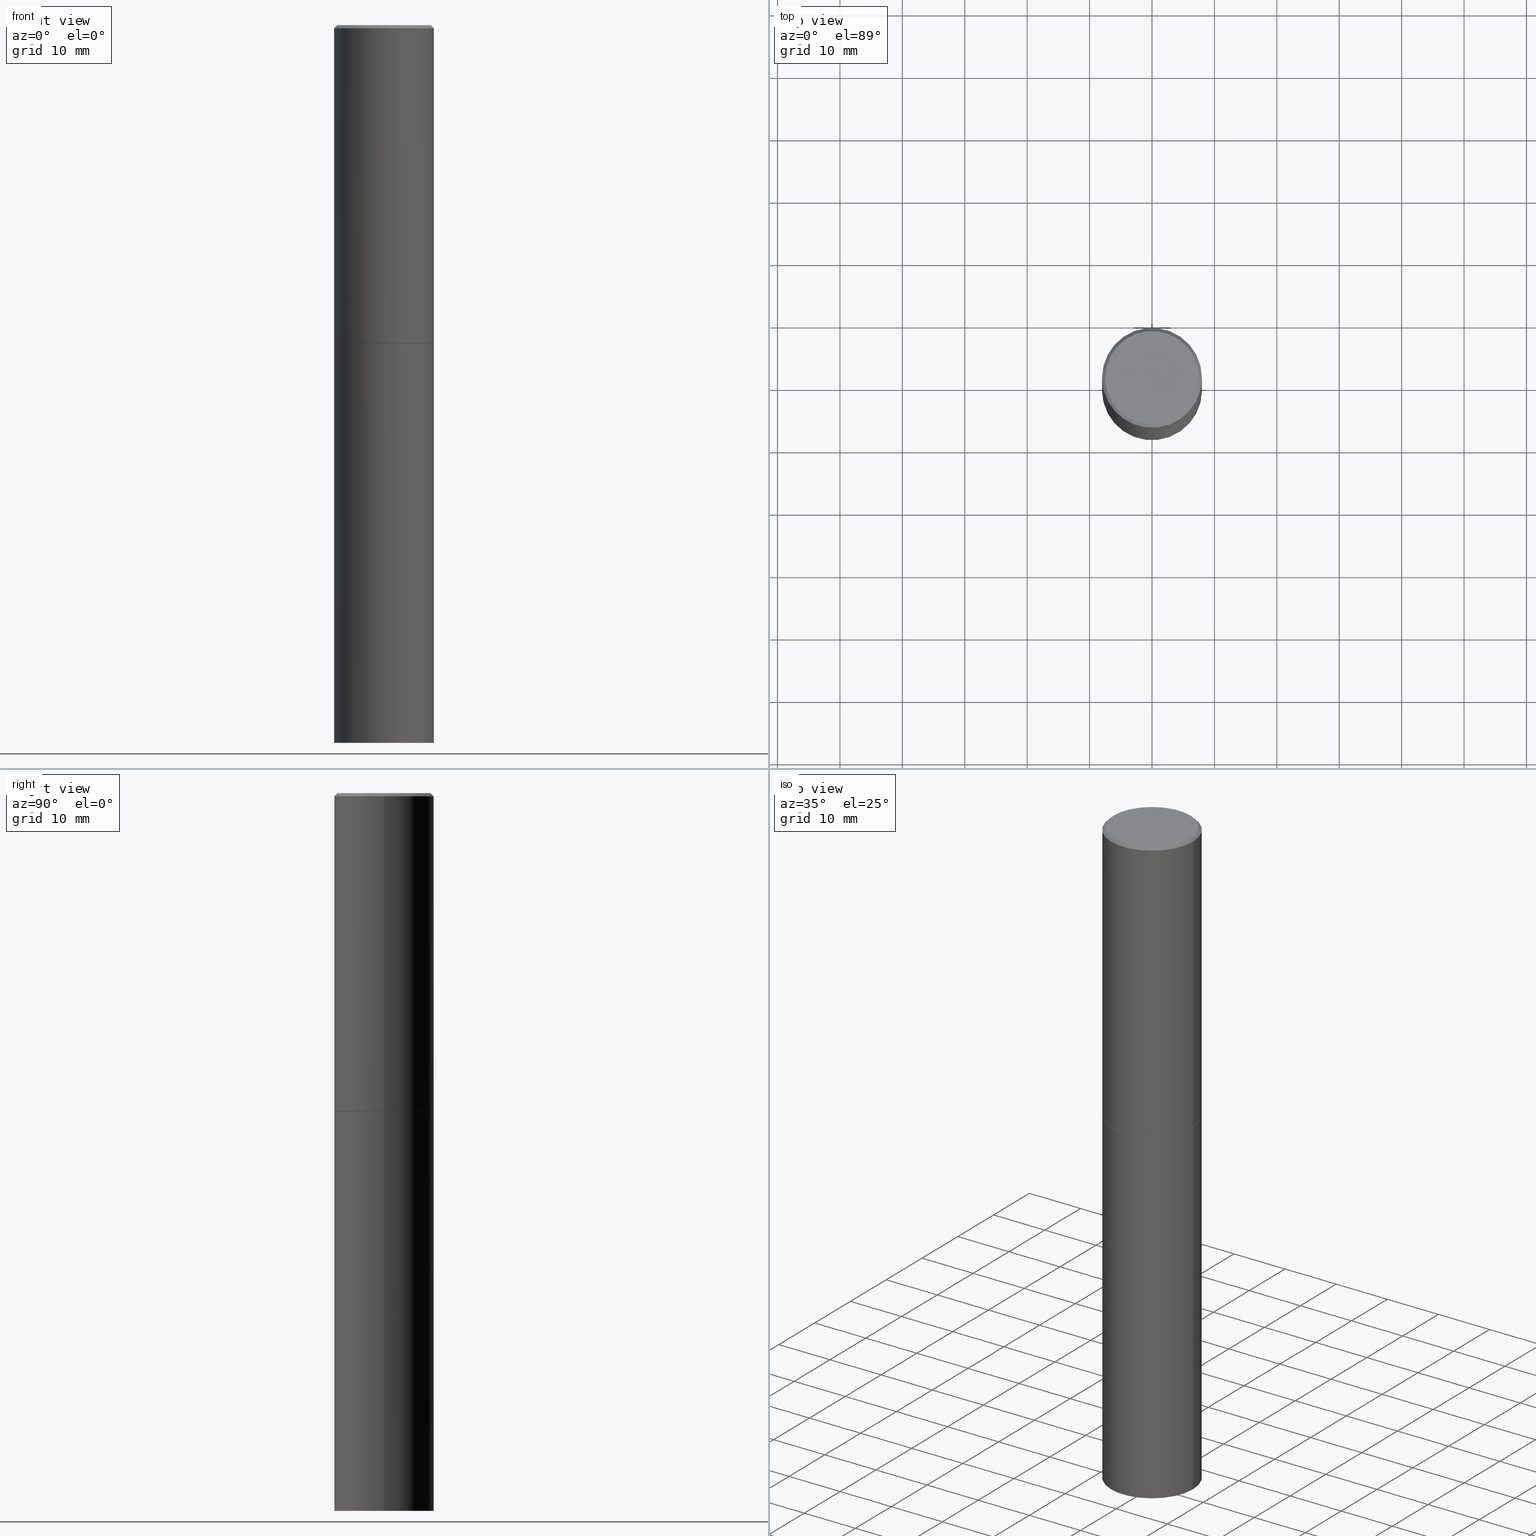
[diagram: canonical four-view strip — front | top / right | iso, engineering-drawing reading convention]
A machine part, canonical four-view strip (front | top / right | iso — engineering-drawing reading convention). The complete STEP part file that produces these views, byte-faithful:
ISO-10303-21;
HEADER;
FILE_DESCRIPTION (( 'STEP AP203' ),
    '1' );
FILE_NAME ('74775.STEP',
    '2024-05-03T15:03:50',
    ( '' ),
    ( '' ),
    'SwSTEP 2.0',
    'SolidWorks 2023',
    '' );
FILE_SCHEMA (( 'CONFIG_CONTROL_DESIGN' ));
ENDSEC;

DATA;
#1 = EDGE_CURVE ( 'NONE', #366, #174, #233, .T. ) ;
#2 = CARTESIAN_POINT ( 'NONE',  ( 0.3149500000000000077, -2.199284095337289871E-15, 1.535751875536930130E-29 ) ) ;
#4 = DIRECTION ( 'NONE',  ( 1.000000000000000000, -6.982962677686267499E-15, 4.876053491004738270E-29 ) ) ;
#3 = FACE_OUTER_BOUND ( 'NONE', #91, .T. ) ;
#5 = ADVANCED_BREP_SHAPE_REPRESENTATION ( '74775', ( #44, #50, #245 ), #75 ) ;
#6 = DIRECTION ( 'NONE',  ( -2.445468806185136597E-29, 3.491481338843145583E-15, 1.000000000000000000 ) ) ;
#7 = CARTESIAN_POINT ( 'NONE',  ( -2.087702828670439639E-46, 2.980686340760894400E-32, 8.537024980200822558E-18 ) ) ;
#8 =( CONVERSION_BASED_UNIT ( 'INCH', #184 ) LENGTH_UNIT ( ) NAMED_UNIT ( #36 ) );
#9 = DIRECTION ( 'NONE',  ( -1.000000000000000000, 6.982962677686265922E-15, -4.876176775795935793E-29 ) ) ;
#10 = EDGE_CURVE ( 'NONE', #285, #257, #345, .T. ) ;
#11 = CARTESIAN_POINT ( 'NONE',  ( 4.910256815939133627E-29, -7.010545380263148555E-15, -2.007899999999998908 ) ) ;
#12 = CONICAL_SURFACE ( 'NONE', #41, 0.3149499999999997857, 0.7853981633974471688 ) ;
#13 = CONICAL_SURFACE ( 'NONE', #226, 0.3149499999999997857, 0.7853981633974471688 ) ;
#14 = DIRECTION ( 'NONE',  ( 1.000000000000000000, -6.982962677686266711E-15, 4.876176775795936353E-29 ) ) ;
#15 = CARTESIAN_POINT ( 'NONE',  ( 0.3149499999999997857, -2.230543471175005872E-15, -0.02000000000000006981 ) ) ;
#16 = EDGE_LOOP ( 'NONE', ( #85, #249, #94, #273 ) ) ;
#17 = CYLINDRICAL_SURFACE ( 'NONE', #159, 0.3149500000000000077 ) ;
#18 = APPROVAL_DATE_TIME ( #362, #310 ) ;
#19 = ORIENTED_EDGE ( 'NONE', *, *, #207, .F. ) ;
#20 = CONICAL_SURFACE ( 'NONE', #232, 0.3139500000000000068, 0.7853981633975507526 ) ;
#21 = DIRECTION ( 'NONE',  ( -2.445468806185136597E-29, 3.491481338843145583E-15, 1.000000000000000000 ) ) ;
#22 = PERSON_AND_ORGANIZATION_ROLE ( 'creator' ) ;
#23 = DATE_TIME_ROLE ( 'creation_date' ) ;
#24 = PERSON_AND_ORGANIZATION ( #84, #157 ) ;
#25 = EDGE_CURVE ( 'NONE', #100, #192, #265, .T. ) ;
#26 = VECTOR ( 'NONE', #236, 39.37007874015748143 ) ;
#27 = FACE_OUTER_BOUND ( 'NONE', #328, .T. ) ;
#28 = VERTEX_POINT ( 'NONE', #35 ) ;
#29 = APPROVAL_STATUS ( 'not_yet_approved' ) ;
#30 = ORIENTED_EDGE ( 'NONE', *, *, #350, .F. ) ;
#31 = EDGE_LOOP ( 'NONE', ( #129, #209, #337, #89 ) ) ;
#32 = LOCAL_TIME ( 11, 3, 50.00000000000000000, #327 ) ;
#33 = ORIENTED_EDGE ( 'NONE', *, *, #133, .F. ) ;
#34 = DIRECTION ( 'NONE',  ( -2.445468806185136597E-29, 3.491481338843145583E-15, 1.000000000000000000 ) ) ;
#35 = CARTESIAN_POINT ( 'NONE',  ( 0.3149500000000000077, -9.206337994261596208E-15, -2.006899999999999462 ) ) ;
#36 = DIMENSIONAL_EXPONENTS ( 1.000000000000000000, 0.000000000000000000, 0.000000000000000000, 0.000000000000000000, 0.000000000000000000, 0.000000000000000000, 0.000000000000000000 ) ;
#37 = DIRECTION ( 'NONE',  ( 1.000000000000000000, -6.982962677686264344E-15, 0.000000000000000000 ) ) ;
#38 = EDGE_CURVE ( 'NONE', #357, #174, #156, .T. ) ;
#39 = DIRECTION ( 'NONE',  ( 1.000000000000000000, -6.982962677686266711E-15, 4.876176775795936353E-29 ) ) ;
#40 = APPLICATION_CONTEXT ( 'configuration controlled 3d designs of mechanical parts and assemblies' ) ;
#41 = AXIS2_PLACEMENT_3D ( 'NONE', #250, #347, #239 ) ;
#42 = CARTESIAN_POINT ( 'NONE',  ( -2.087702828670439639E-46, 2.980686340760894400E-32, 8.537024980200822558E-18 ) ) ;
#43 = DIRECTION ( 'NONE',  ( -2.445468806185136597E-29, 3.491481338843145583E-15, 1.000000000000000000 ) ) ;
#44 = MANIFOLD_SOLID_BREP ( 'Body-Move/Copy2[1]', #65 ) ;
#45 = DIRECTION ( 'NONE',  ( -2.445468806185136597E-29, 3.491481338843145583E-15, 1.000000000000000000 ) ) ;
#46 = ORIENTED_EDGE ( 'NONE', *, *, #227, .F. ) ;
#47 = AXIS2_PLACEMENT_3D ( 'NONE', #298, #45, #197 ) ;
#48 = ADVANCED_FACE ( 'NONE', ( #27 ), #66, .F. ) ;
#49 = CIRCLE ( 'NONE', #147, 0.3149500000000000077 ) ;
#50 = MANIFOLD_SOLID_BREP ( 'Body-Move/Copy2[2]', #130 ) ;
#51 = CARTESIAN_POINT ( 'NONE',  ( 1.107210456688382298E-28, -1.580803090974622389E-14, -4.527599999999999625 ) ) ;
#52 = CARTESIAN_POINT ( 'NONE',  ( 0.3139500000000000068, -9.202846512922751623E-15, -2.007899999999998908 ) ) ;
#53 = EDGE_LOOP ( 'NONE', ( #30, #180 ) ) ;
#54 = DATE_AND_TIME ( #194, #58 ) ;
#55 = ORIENTED_EDGE ( 'NONE', *, *, #38, .F. ) ;
#56 = ADVANCED_FACE ( 'NONE', ( #103 ), #158, .F. ) ;
#57 = APPLICATION_PROTOCOL_DEFINITION ( 'international standard', 'config_control_design', 1994, #108 ) ;
#58 = LOCAL_TIME ( 11, 3, 50.00000000000000000, #198 ) ;
#59 = AXIS2_PLACEMENT_3D ( 'NONE', #343, #304, #87 ) ;
#60 = PERSON_AND_ORGANIZATION ( #84, #157 ) ;
#61 = PERSON_AND_ORGANIZATION ( #84, #157 ) ;
#62 = ADVANCED_FACE ( 'NONE', ( #95 ), #13, .T. ) ;
#63 = PERSON_AND_ORGANIZATION_ROLE ( 'creator' ) ;
#64 = CIRCLE ( 'NONE', #293, 0.3149500000000000077 ) ;
#65 = CLOSED_SHELL ( 'NONE', ( #202, #314, #48, #320 ) ) ;
#66 = PLANE ( 'NONE',  #93 ) ;
#67 = VERTEX_POINT ( 'NONE', #187 ) ;
#68 = EDGE_CURVE ( 'NONE', #257, #28, #297, .T. ) ;
#69 = CYLINDRICAL_SURFACE ( 'NONE', #269, 0.3149500000000000077 ) ;
#70 = AXIS2_PLACEMENT_3D ( 'NONE', #97, #262, #340 ) ;
#71 = DIRECTION ( 'NONE',  ( -2.445468806185136597E-29, 3.491481338843145583E-15, 1.000000000000000000 ) ) ;
#72 = VECTOR ( 'NONE', #168, 39.37007874015748143 ) ;
#73 = DIRECTION ( 'NONE',  ( 1.000000000000000000, -6.982962677686269866E-15, 0.000000000000000000 ) ) ;
#74 = CC_DESIGN_PERSON_AND_ORGANIZATION_ASSIGNMENT ( #324, #280, ( #170 ) ) ;
#75 =( GEOMETRIC_REPRESENTATION_CONTEXT ( 3 ) GLOBAL_UNCERTAINTY_ASSIGNED_CONTEXT ( ( #76 ) ) GLOBAL_UNIT_ASSIGNED_CONTEXT ( ( #8, #131, #361 ) ) REPRESENTATION_CONTEXT ( 'NONE', 'WORKASPACE' ) );
#76 = UNCERTAINTY_MEASURE_WITH_UNIT (LENGTH_MEASURE( 1.000000000000000082E-05 ), #8, 'distance_accuracy_value', 'NONE');
#77 = CARTESIAN_POINT ( 'NONE',  ( 0.3139500000000000068, -9.202846512922751623E-15, -2.007899999999998908 ) ) ;
#78 = CARTESIAN_POINT ( 'NONE',  ( -0.2949499999999997679, 2.094539655171994135E-15, 8.537024980186296424E-18 ) ) ;
#79 = CARTESIAN_POINT ( 'NONE',  ( 2.059624841783562486E-15, 0.2949499999999997679, -1.025543908401684563E-15 ) ) ;
#80 = ORIENTED_EDGE ( 'NONE', *, *, #210, .T. ) ;
#81 = CIRCLE ( 'NONE', #216, 0.3149499999999997857 ) ;
#82 = CIRCLE ( 'NONE', #59, 0.3149500000000000077 ) ;
#83 =( LENGTH_UNIT ( ) NAMED_UNIT ( * ) SI_UNIT ( $, .METRE. ) );
#84 = PERSON ( 'UNSPECIFIED', 'UNSPECIFIED', 'UNSPECIFIED', ('UNSPECIFIED'), ('UNSPECIFIED'), ('UNSPECIFIED') ) ;
#85 = ORIENTED_EDGE ( 'NONE', *, *, #213, .T. ) ;
#86 = APPROVAL ( #29, 'UNSPECIFIED' ) ;
#87 = DIRECTION ( 'NONE',  ( 1.000000000000000000, -6.982962677686266711E-15, 0.000000000000000000 ) ) ;
#88 = PERSON_AND_ORGANIZATION ( #84, #157 ) ;
#89 = ORIENTED_EDGE ( 'NONE', *, *, #25, .F. ) ;
#90 = CALENDAR_DATE ( 2024, 3, 5 ) ;
#91 = EDGE_LOOP ( 'NONE', ( #125, #80 ) ) ;
#92 = LOCAL_TIME ( 11, 3, 50.00000000000000000, #307 ) ;
#93 = AXIS2_PLACEMENT_3D ( 'NONE', #148, #177, #9 ) ;
#94 = ORIENTED_EDGE ( 'NONE', *, *, #151, .F. ) ;
#95 = FACE_OUTER_BOUND ( 'NONE', #315, .T. ) ;
#96 = DIRECTION ( 'NONE',  ( 1.000000000000000000, -6.982962677686264344E-15, 0.000000000000000000 ) ) ;
#97 = CARTESIAN_POINT ( 'NONE',  ( 2.199284095337399917E-15, 0.3149499999999842426, -4.527600000000000513 ) ) ;
#98 = ORIENTED_EDGE ( 'NONE', *, *, #227, .T. ) ;
#99 = VECTOR ( 'NONE', #221, 39.37007874015748143 ) ;
#100 = VERTEX_POINT ( 'NONE', #78 ) ;
#101 = EDGE_CURVE ( 'NONE', #174, #366, #119, .T. ) ;
#102 = LINE ( 'NONE', #292, #332 ) ;
#103 = FACE_OUTER_BOUND ( 'NONE', #223, .T. ) ;
#104 = LINE ( 'NONE', #215, #26 ) ;
#105 = CC_DESIGN_SECURITY_CLASSIFICATION ( #200, ( #170 ) ) ;
#106 = FACE_OUTER_BOUND ( 'NONE', #214, .T. ) ;
#107 = ORIENTED_EDGE ( 'NONE', *, *, #350, .T. ) ;
#108 = APPLICATION_CONTEXT ( 'configuration controlled 3d designs of mechanical parts and assemblies' ) ;
#109 = DIRECTION ( 'NONE',  ( -2.445468806185136597E-29, 3.491481338843145583E-15, 1.000000000000000000 ) ) ;
#110 = DIRECTION ( 'NONE',  ( -1.000000000000000000, 6.982962677686265922E-15, -4.876176775795935793E-29 ) ) ;
#111 = CC_DESIGN_PERSON_AND_ORGANIZATION_ASSIGNMENT ( #61, #116, ( #219 ) ) ;
#112 = ORIENTED_EDGE ( 'NONE', *, *, #126, .T. ) ;
#113 = APPROVAL_PERSON_ORGANIZATION ( #24, #139, #166 ) ;
#114 = CARTESIAN_POINT ( 'NONE',  ( 4.907811347132949146E-29, -7.007053898924306337E-15, -2.006899999999999462 ) ) ;
#115 = CYLINDRICAL_SURFACE ( 'NONE', #47, 0.3149499999999998967 ) ;
#116 = PERSON_AND_ORGANIZATION_ROLE ( 'design_owner' ) ;
#117 = ORIENTED_EDGE ( 'NONE', *, *, #101, .F. ) ;
#118 = CIRCLE ( 'NONE', #128, 0.2949499999999997679 ) ;
#119 = CIRCLE ( 'NONE', #160, 0.3149500000000000077 ) ;
#120 = DATE_AND_TIME ( #325, #211 ) ;
#121 = ORIENTED_EDGE ( 'NONE', *, *, #317, .T. ) ;
#122 = SECURITY_CLASSIFICATION_LEVEL ( 'unclassified' ) ;
#123 = CIRCLE ( 'NONE', #354, 0.3149499999999997857 ) ;
#124 = AXIS2_PLACEMENT_3D ( 'NONE', #313, #71, #73 ) ;
#125 = ORIENTED_EDGE ( 'NONE', *, *, #290, .T. ) ;
#126 = EDGE_CURVE ( 'NONE', #167, #357, #49, .T. ) ;
#127 = ORIENTED_EDGE ( 'NONE', *, *, #260, .F. ) ;
#128 = AXIS2_PLACEMENT_3D ( 'NONE', #42, #349, #352 ) ;
#129 = ORIENTED_EDGE ( 'NONE', *, *, #210, .F. ) ;
#130 = CLOSED_SHELL ( 'NONE', ( #338, #224, #281, #62, #266, #240, #56, #359 ) ) ;
#131 =( NAMED_UNIT ( * ) PLANE_ANGLE_UNIT ( ) SI_UNIT ( $, .RADIAN. ) );
#132 = DIRECTION ( 'NONE',  ( -2.438088387897960049E-29, 3.491481338843145188E-15, 1.000000000000000000 ) ) ;
#133 = EDGE_CURVE ( 'NONE', #285, #353, #104, .T. ) ;
#134 = DIRECTION ( 'NONE',  ( 1.000000000000000000, -6.982962677686266711E-15, 0.000000000000000000 ) ) ;
#135 = FACE_OUTER_BOUND ( 'NONE', #31, .T. ) ;
#136 = DESIGN_CONTEXT ( 'detailed design', #40, 'design' ) ;
#137 = DIRECTION ( 'NONE',  ( -2.445468806185136877E-29, 3.491481338843145188E-15, 1.000000000000000000 ) ) ;
#138 = DIRECTION ( 'NONE',  ( -2.445468806185136597E-29, 3.491481338843145583E-15, 1.000000000000000000 ) ) ;
#139 = APPROVAL ( #169, 'UNSPECIFIED' ) ;
#140 = CARTESIAN_POINT ( 'NONE',  ( -0.3149499999999998967, 2.237854346276434801E-15, -1.549218606675782116E-29 ) ) ;
#141 = CARTESIAN_POINT ( 'NONE',  ( -0.3149500000000000077, -9.171433798728249845E-15, -2.007899999999999352 ) ) ;
#142 = ORIENTED_EDGE ( 'NONE', *, *, #199, .T. ) ;
#143 = DIRECTION ( 'NONE',  ( 1.000000000000000000, -6.982962677686269866E-15, 0.000000000000000000 ) ) ;
#144 = VECTOR ( 'NONE', #282, 39.37007874015748143 ) ;
#145 = CARTESIAN_POINT ( 'NONE',  ( 0.000000000000000000, 0.000000000000000000, 0.000000000000000000 ) ) ;
#146 = CC_DESIGN_APPROVAL ( #139, ( #161 ) ) ;
#147 = AXIS2_PLACEMENT_3D ( 'NONE', #51, #21, #238 ) ;
#148 = CARTESIAN_POINT ( 'NONE',  ( 2.199284095337338386E-15, 0.3149499999999929578, -2.007900000000000240 ) ) ;
#149 = ORIENTED_EDGE ( 'NONE', *, *, #330, .T. ) ;
#150 = APPROVAL_STATUS ( 'not_yet_approved' ) ;
#151 = EDGE_CURVE ( 'NONE', #28, #353, #82, .T. ) ;
#152 = VERTEX_POINT ( 'NONE', #163 ) ;
#153 = VECTOR ( 'NONE', #137, 39.37007874015748143 ) ;
#154 = DIRECTION ( 'NONE',  ( -2.445468806185136597E-29, 3.491481338843145583E-15, 1.000000000000000000 ) ) ;
#155 = VECTOR ( 'NONE', #289, 39.37007874015748143 ) ;
#156 = LINE ( 'NONE', #2, #144 ) ;
#157 = ORGANIZATION ( 'UNSPECIFIED', 'UNSPECIFIED', '' ) ;
#158 = PLANE ( 'NONE',  #333 ) ;
#159 = AXIS2_PLACEMENT_3D ( 'NONE', #196, #319, #14 ) ;
#160 = AXIS2_PLACEMENT_3D ( 'NONE', #165, #138, #143 ) ;
#161 = PRODUCT_DEFINITION ( 'UNKNOWN', '', #170, #136 ) ;
#162 = PLANE ( 'NONE',  #331 ) ;
#163 = CARTESIAN_POINT ( 'NONE',  ( 0.2949499999999997679, -2.127023677808858891E-15, 8.537024980215462707E-18 ) ) ;
#164 = ORIENTED_EDGE ( 'NONE', *, *, #317, .F. ) ;
#165 = CARTESIAN_POINT ( 'NONE',  ( 4.910256815939134188E-29, -7.010545380263150133E-15, -2.007899999999999352 ) ) ;
#166 = APPROVAL_ROLE ( '' ) ;
#167 = VERTEX_POINT ( 'NONE', #318 ) ;
#168 = DIRECTION ( 'NONE',  ( 0.7071067811866199593, -2.468850131083015945E-15, 0.7071067811864750752 ) ) ;
#169 = APPROVAL_STATUS ( 'not_yet_approved' ) ;
#170 = PRODUCT_DEFINITION_FORMATION_WITH_SPECIFIED_SOURCE ( 'ANY', '', #219, .NOT_KNOWN. ) ;
#171 = COORDINATED_UNIVERSAL_TIME_OFFSET ( 5, 0, .BEHIND. ) ;
#172 = CC_DESIGN_DATE_AND_TIME_ASSIGNMENT ( #54, #279, ( #200 ) ) ;
#173 = APPLICATION_PROTOCOL_DEFINITION ( 'international standard', 'config_control_design', 1994, #40 ) ;
#174 = VERTEX_POINT ( 'NONE', #241 ) ;
#175 = APPROVAL_DATE_TIME ( #302, #139 ) ;
#176 = AXIS2_PLACEMENT_3D ( 'NONE', #7, #154, #4 ) ;
#177 = DIRECTION ( 'NONE',  ( 2.438088387897960049E-29, -3.491481338843145188E-15, -1.000000000000000000 ) ) ;
#178 = ORIENTED_EDGE ( 'NONE', *, *, #101, .T. ) ;
#179 = DIRECTION ( 'NONE',  ( 2.445468806185136597E-29, -3.491481338843145583E-15, -1.000000000000000000 ) ) ;
#180 = ORIENTED_EDGE ( 'NONE', *, *, #126, .F. ) ;
#181 = CC_DESIGN_PERSON_AND_ORGANIZATION_ASSIGNMENT ( #60, #63, ( #161 ) ) ;
#182 = DIRECTION ( 'NONE',  ( -2.445468806185136597E-29, 3.491481338843145583E-15, 1.000000000000000000 ) ) ;
#183 = FACE_OUTER_BOUND ( 'NONE', #53, .T. ) ;
#184 = LENGTH_MEASURE_WITH_UNIT ( LENGTH_MEASURE( 0.02539999999999999897 ), #83 );
#185 = CONICAL_SURFACE ( 'NONE', #204, 0.3139500000000000068, 0.7853981633975507526 ) ;
#186 = CIRCLE ( 'NONE', #261, 0.3149500000000000077 ) ;
#187 = CARTESIAN_POINT ( 'NONE',  ( 0.3149499999999997857, -2.230543471175005872E-15, -0.02000000000000006981 ) ) ;
#188 = DIRECTION ( 'NONE',  ( -1.000000000000000000, 6.982962677686266711E-15, 0.000000000000000000 ) ) ;
#189 = DIRECTION ( 'NONE',  ( -2.445468806185136597E-29, 3.491481338843145583E-15, 1.000000000000000000 ) ) ;
#190 = CIRCLE ( 'NONE', #176, 0.2949499999999997679 ) ;
#191 = DIRECTION ( 'NONE',  ( -2.445468806185136597E-29, 3.491481338843145583E-15, 1.000000000000000000 ) ) ;
#192 = VERTEX_POINT ( 'NONE', #355 ) ;
#193 = DIRECTION ( 'NONE',  ( 1.000000000000000000, -6.982962677686265922E-15, 4.876176775795935232E-29 ) ) ;
#194 = CALENDAR_DATE ( 2024, 3, 5 ) ;
#195 = EDGE_LOOP ( 'NONE', ( #19, #112, #286, #311 ) ) ;
#196 = CARTESIAN_POINT ( 'NONE',  ( 0.000000000000000000, 0.000000000000000000, 0.000000000000000000 ) ) ;
#197 = DIRECTION ( 'NONE',  ( 1.000000000000000000, -6.982962677686265922E-15, 4.876176775795935232E-29 ) ) ;
#198 = COORDINATED_UNIVERSAL_TIME_OFFSET ( 5, 0, .BEHIND. ) ;
#199 = EDGE_CURVE ( 'NONE', #353, #28, #186, .T. ) ;
#200 = SECURITY_CLASSIFICATION ( '', '', #122 ) ;
#201 = DIRECTION ( 'NONE',  ( 1.000000000000000000, 0.000000000000000000, 0.000000000000000000 ) ) ;
#202 = ADVANCED_FACE ( 'NONE', ( #270 ), #17, .T. ) ;
#203 = ORIENTED_EDGE ( 'NONE', *, *, #207, .T. ) ;
#204 = AXIS2_PLACEMENT_3D ( 'NONE', #237, #346, #37 ) ;
#205 = CARTESIAN_POINT ( 'NONE',  ( 4.890937612370289799E-31, -6.982962677686315028E-17, -0.02000000000000006981 ) ) ;
#206 = FACE_OUTER_BOUND ( 'NONE', #195, .T. ) ;
#207 = EDGE_CURVE ( 'NONE', #167, #366, #220, .T. ) ;
#208 = ORIENTED_EDGE ( 'NONE', *, *, #10, .F. ) ;
#209 = ORIENTED_EDGE ( 'NONE', *, *, #363, .T. ) ;
#210 = EDGE_CURVE ( 'NONE', #152, #100, #118, .T. ) ;
#211 = LOCAL_TIME ( 11, 3, 50.00000000000000000, #222 ) ;
#212 = CARTESIAN_POINT ( 'NONE',  ( 0.000000000000000000, 0.000000000000000000, 0.000000000000000000 ) ) ;
#213 = EDGE_CURVE ( 'NONE', #257, #285, #344, .T. ) ;
#214 = EDGE_LOOP ( 'NONE', ( #277, #98, #127, #164 ) ) ;
#215 = CARTESIAN_POINT ( 'NONE',  ( -0.3139500000000000068, -4.779796461344314367E-15, -2.007899999999998908 ) ) ;
#216 = AXIS2_PLACEMENT_3D ( 'NONE', #264, #342, #134 ) ;
#217 = DIRECTION ( 'NONE',  ( 0.7071067811865466846, -7.319954787623252890E-15, -0.7071067811865483499 ) ) ;
#218 = ORIENTED_EDGE ( 'NONE', *, *, #290, .F. ) ;
#219 = PRODUCT ( '74775', '74775', '', ( #329 ) ) ;
#220 = LINE ( 'NONE', #294, #153 ) ;
#221 = DIRECTION ( 'NONE',  ( -2.445468806185136877E-29, 3.491481338843145188E-15, 1.000000000000000000 ) ) ;
#222 = COORDINATED_UNIVERSAL_TIME_OFFSET ( 5, 0, .BEHIND. ) ;
#223 = EDGE_LOOP ( 'NONE', ( #364, #208 ) ) ;
#224 = ADVANCED_FACE ( 'NONE', ( #106 ), #300, .T. ) ;
#225 = DATE_AND_TIME ( #90, #316 ) ;
#226 = AXIS2_PLACEMENT_3D ( 'NONE', #205, #179, #188 ) ;
#227 = EDGE_CURVE ( 'NONE', #353, #192, #230, .T. ) ;
#228 = PERSON_AND_ORGANIZATION ( #84, #157 ) ;
#229 = ORIENTED_EDGE ( 'NONE', *, *, #68, .T. ) ;
#230 = LINE ( 'NONE', #140, #99 ) ;
#231 = CARTESIAN_POINT ( 'NONE',  ( 4.910256815939133627E-29, -7.010545380263148555E-15, -2.007899999999998908 ) ) ;
#232 = AXIS2_PLACEMENT_3D ( 'NONE', #301, #268, #275 ) ;
#233 = CIRCLE ( 'NONE', #124, 0.3149500000000000077 ) ;
#234 = CC_DESIGN_PERSON_AND_ORGANIZATION_ASSIGNMENT ( #88, #253, ( #200 ) ) ;
#235 = DIRECTION ( 'NONE',  ( -2.445468806185136877E-29, 3.491481338843145188E-15, 1.000000000000000000 ) ) ;
#236 = DIRECTION ( 'NONE',  ( -0.7071067811866199593, 7.493145998870616062E-15, 0.7071067811864750752 ) ) ;
#237 = CARTESIAN_POINT ( 'NONE',  ( 4.910256815939133627E-29, -7.010545380263148555E-15, -2.007899999999998908 ) ) ;
#238 = DIRECTION ( 'NONE',  ( 1.000000000000000000, -6.982962677686269866E-15, 0.000000000000000000 ) ) ;
#239 = DIRECTION ( 'NONE',  ( -1.000000000000000000, 6.982962677686266711E-15, 0.000000000000000000 ) ) ;
#240 = ADVANCED_FACE ( 'NONE', ( #296 ), #20, .T. ) ;
#241 = CARTESIAN_POINT ( 'NONE',  ( 0.3149500000000000077, -9.209829475600440793E-15, -2.007899999999999352 ) ) ;
#242 = ORIENTED_EDGE ( 'NONE', *, *, #363, .F. ) ;
#243 = DIRECTION ( 'NONE',  ( 1.000000000000000000, -6.982962677686266711E-15, 0.000000000000000000 ) ) ;
#244 = EDGE_LOOP ( 'NONE', ( #33, #287, #229, #322 ) ) ;
#245 = AXIS2_PLACEMENT_3D ( 'NONE', #145, #305, #201 ) ;
#246 = CARTESIAN_POINT ( 'NONE',  ( 4.890937612370289799E-31, -6.982962677686315028E-17, -0.02000000000000006981 ) ) ;
#247 = AXIS2_PLACEMENT_3D ( 'NONE', #231, #182, #96 ) ;
#248 = PRODUCT_RELATED_PRODUCT_CATEGORY ( 'detail', '', ( #219 ) ) ;
#249 = ORIENTED_EDGE ( 'NONE', *, *, #133, .T. ) ;
#250 = CARTESIAN_POINT ( 'NONE',  ( 4.890937612370289799E-31, -6.982962677686315028E-17, -0.02000000000000006981 ) ) ;
#251 = SHAPE_DEFINITION_REPRESENTATION ( #303, #5 ) ;
#252 = PERSON_AND_ORGANIZATION ( #84, #157 ) ;
#253 = PERSON_AND_ORGANIZATION_ROLE ( 'classification_officer' ) ;
#254 = AXIS2_PLACEMENT_3D ( 'NONE', #212, #109, #193 ) ;
#255 = ORIENTED_EDGE ( 'NONE', *, *, #25, .T. ) ;
#256 = CALENDAR_DATE ( 2024, 3, 5 ) ;
#257 = VERTEX_POINT ( 'NONE', #52 ) ;
#258 = EDGE_LOOP ( 'NONE', ( #107, #203, #117, #55 ) ) ;
#259 = CC_DESIGN_APPROVAL ( #310, ( #200 ) ) ;
#260 = EDGE_CURVE ( 'NONE', #67, #192, #123, .T. ) ;
#261 = AXIS2_PLACEMENT_3D ( 'NONE', #114, #43, #243 ) ;
#262 = DIRECTION ( 'NONE',  ( 2.438088387897960049E-29, -3.491481338843145188E-15, -1.000000000000000000 ) ) ;
#264 = CARTESIAN_POINT ( 'NONE',  ( 4.890937612370289799E-31, -6.982962677686315028E-17, -0.02000000000000006981 ) ) ;
#263 = CARTESIAN_POINT ( 'NONE',  ( 0.3149500000000000077, -1.800731500508351534E-14, -4.527599999999999625 ) ) ;
#265 = LINE ( 'NONE', #335, #155 ) ;
#266 = ADVANCED_FACE ( 'NONE', ( #358 ), #115, .T. ) ;
#267 = CARTESIAN_POINT ( 'NONE',  ( 1.107210456688382298E-28, -1.580803090974622389E-14, -4.527599999999999625 ) ) ;
#268 = DIRECTION ( 'NONE',  ( -2.445468806185136597E-29, 3.491481338843145583E-15, 1.000000000000000000 ) ) ;
#269 = AXIS2_PLACEMENT_3D ( 'NONE', #288, #34, #39 ) ;
#270 = FACE_OUTER_BOUND ( 'NONE', #258, .T. ) ;
#271 = DIRECTION ( 'NONE',  ( 1.000000000000000000, -6.982962677686264344E-15, 0.000000000000000000 ) ) ;
#272 = DIRECTION ( 'NONE',  ( 2.438088387897960049E-29, -3.491481338843145188E-15, -1.000000000000000000 ) ) ;
#273 = ORIENTED_EDGE ( 'NONE', *, *, #68, .F. ) ;
#274 = CC_DESIGN_DATE_AND_TIME_ASSIGNMENT ( #225, #23, ( #161 ) ) ;
#275 = DIRECTION ( 'NONE',  ( 1.000000000000000000, -6.982962677686264344E-15, 0.000000000000000000 ) ) ;
#276 = APPROVAL_DATE_TIME ( #120, #86 ) ;
#277 = ORIENTED_EDGE ( 'NONE', *, *, #151, .T. ) ;
#278 = APPROVAL_ROLE ( '' ) ;
#279 = DATE_TIME_ROLE ( 'classification_date' ) ;
#280 = PERSON_AND_ORGANIZATION_ROLE ( 'design_supplier' ) ;
#281 = ADVANCED_FACE ( 'NONE', ( #135 ), #12, .T. ) ;
#282 = DIRECTION ( 'NONE',  ( -2.445468806185136877E-29, 3.491481338843145188E-15, 1.000000000000000000 ) ) ;
#283 = PERSON_AND_ORGANIZATION ( #84, #157 ) ;
#284 = VECTOR ( 'NONE', #217, 39.37007874015748143 ) ;
#285 = VERTEX_POINT ( 'NONE', #312 ) ;
#286 = ORIENTED_EDGE ( 'NONE', *, *, #38, .T. ) ;
#287 = ORIENTED_EDGE ( 'NONE', *, *, #10, .T. ) ;
#288 = CARTESIAN_POINT ( 'NONE',  ( 0.000000000000000000, 0.000000000000000000, 0.000000000000000000 ) ) ;
#289 = DIRECTION ( 'NONE',  ( -0.7071067811865466846, 2.468850131082247989E-15, -0.7071067811865483499 ) ) ;
#290 = EDGE_CURVE ( 'NONE', #100, #152, #190, .T. ) ;
#291 = FACE_OUTER_BOUND ( 'NONE', #16, .T. ) ;
#292 = CARTESIAN_POINT ( 'NONE',  ( 0.3149499999999998967, -2.199284095337288688E-15, 1.535751875536929289E-29 ) ) ;
#293 = AXIS2_PLACEMENT_3D ( 'NONE', #267, #6, #341 ) ;
#294 = CARTESIAN_POINT ( 'NONE',  ( -0.3149500000000000077, 2.237854346276435590E-15, -1.549218606675782676E-29 ) ) ;
#295 = CC_DESIGN_PERSON_AND_ORGANIZATION_ASSIGNMENT ( #252, #22, ( #170 ) ) ;
#296 = FACE_OUTER_BOUND ( 'NONE', #244, .T. ) ;
#297 = LINE ( 'NONE', #77, #72 ) ;
#298 = CARTESIAN_POINT ( 'NONE',  ( 0.000000000000000000, 0.000000000000000000, 0.000000000000000000 ) ) ;
#299 = LINE ( 'NONE', #15, #284 ) ;
#300 = CYLINDRICAL_SURFACE ( 'NONE', #254, 0.3149499999999998967 ) ;
#301 = CARTESIAN_POINT ( 'NONE',  ( 4.910256815939133627E-29, -7.010545380263148555E-15, -2.007899999999998908 ) ) ;
#302 = DATE_AND_TIME ( #306, #92 ) ;
#303 = PRODUCT_DEFINITION_SHAPE ( 'NONE', 'NONE',  #161 ) ;
#304 = DIRECTION ( 'NONE',  ( -2.445468806185136597E-29, 3.491481338843145583E-15, 1.000000000000000000 ) ) ;
#305 = DIRECTION ( 'NONE',  ( 0.000000000000000000, 0.000000000000000000, 1.000000000000000000 ) ) ;
#306 = CALENDAR_DATE ( 2024, 3, 5 ) ;
#307 = COORDINATED_UNIVERSAL_TIME_OFFSET ( 5, 0, .BEHIND. ) ;
#308 = ORIENTED_EDGE ( 'NONE', *, *, #1, .T. ) ;
#309 = CC_DESIGN_APPROVAL ( #86, ( #170 ) ) ;
#310 = APPROVAL ( #150, 'UNSPECIFIED' ) ;
#311 = ORIENTED_EDGE ( 'NONE', *, *, #1, .F. ) ;
#312 = CARTESIAN_POINT ( 'NONE',  ( -0.3139500000000000068, -4.774498006996092754E-15, -2.007899999999998908 ) ) ;
#313 = CARTESIAN_POINT ( 'NONE',  ( 4.910256815939134188E-29, -7.010545380263150133E-15, -2.007899999999999352 ) ) ;
#314 = ADVANCED_FACE ( 'NONE', ( #183 ), #336, .T. ) ;
#315 = EDGE_LOOP ( 'NONE', ( #242, #218, #255, #149 ) ) ;
#316 = LOCAL_TIME ( 11, 3, 50.00000000000000000, #171 ) ;
#317 = EDGE_CURVE ( 'NONE', #28, #67, #102, .T. ) ;
#318 = CARTESIAN_POINT ( 'NONE',  ( -0.3149500000000000077, -9.171433798728249845E-15, -4.527599999999999625 ) ) ;
#319 = DIRECTION ( 'NONE',  ( -2.445468806185136597E-29, 3.491481338843145583E-15, 1.000000000000000000 ) ) ;
#320 = ADVANCED_FACE ( 'NONE', ( #206 ), #69, .T. ) ;
#321 = ORIENTED_EDGE ( 'NONE', *, *, #330, .F. ) ;
#322 = ORIENTED_EDGE ( 'NONE', *, *, #199, .F. ) ;
#323 = CARTESIAN_POINT ( 'NONE',  ( 4.910256815939133627E-29, -7.010545380263148555E-15, -2.007899999999998908 ) ) ;
#324 = PERSON_AND_ORGANIZATION ( #84, #157 ) ;
#325 = CALENDAR_DATE ( 2024, 3, 5 ) ;
#326 = APPROVAL_PERSON_ORGANIZATION ( #228, #310, #360 ) ;
#327 = COORDINATED_UNIVERSAL_TIME_OFFSET ( 5, 0, .BEHIND. ) ;
#328 = EDGE_LOOP ( 'NONE', ( #178, #308 ) ) ;
#329 = MECHANICAL_CONTEXT ( 'NONE', #108, 'mechanical' ) ;
#330 = EDGE_CURVE ( 'NONE', #192, #67, #81, .T. ) ;
#331 = AXIS2_PLACEMENT_3D ( 'NONE', #79, #272, #110 ) ;
#332 = VECTOR ( 'NONE', #235, 39.37007874015748143 ) ;
#333 = AXIS2_PLACEMENT_3D ( 'NONE', #11, #132, #334 ) ;
#334 = DIRECTION ( 'NONE',  ( 1.000000000000000000, -6.982962677686265922E-15, 4.876176775795935793E-29 ) ) ;
#335 = CARTESIAN_POINT ( 'NONE',  ( -0.3149499999999997857, 2.129454468560425389E-15, -0.02000000000000006981 ) ) ;
#336 = PLANE ( 'NONE',  #70 ) ;
#337 = ORIENTED_EDGE ( 'NONE', *, *, #260, .T. ) ;
#338 = ADVANCED_FACE ( 'NONE', ( #291 ), #185, .T. ) ;
#339 = APPROVAL_PERSON_ORGANIZATION ( #283, #86, #278 ) ;
#340 = DIRECTION ( 'NONE',  ( -1.000000000000000000, 6.982962677686265922E-15, -4.876176775795935793E-29 ) ) ;
#341 = DIRECTION ( 'NONE',  ( 1.000000000000000000, -6.982962677686269866E-15, 0.000000000000000000 ) ) ;
#342 = DIRECTION ( 'NONE',  ( -2.445468806185136597E-29, 3.491481338843145583E-15, 1.000000000000000000 ) ) ;
#343 = CARTESIAN_POINT ( 'NONE',  ( 4.907811347132949146E-29, -7.007053898924306337E-15, -2.006899999999999462 ) ) ;
#344 = CIRCLE ( 'NONE', #365, 0.3139500000000000068 ) ;
#345 = CIRCLE ( 'NONE', #247, 0.3139500000000000068 ) ;
#346 = DIRECTION ( 'NONE',  ( -2.445468806185136597E-29, 3.491481338843145583E-15, 1.000000000000000000 ) ) ;
#347 = DIRECTION ( 'NONE',  ( 2.445468806185136597E-29, -3.491481338843145583E-15, -1.000000000000000000 ) ) ;
#348 = CARTESIAN_POINT ( 'NONE',  ( -0.3149500000000000077, -1.300587416574147649E-15, -2.006899999999999462 ) ) ;
#349 = DIRECTION ( 'NONE',  ( -2.445468806185136597E-29, 3.491481338843145583E-15, 1.000000000000000000 ) ) ;
#350 = EDGE_CURVE ( 'NONE', #357, #167, #64, .T. ) ;
#351 = EDGE_LOOP ( 'NONE', ( #46, #142, #121, #321 ) ) ;
#352 = DIRECTION ( 'NONE',  ( 1.000000000000000000, -6.982962677686267499E-15, 4.876053491004738270E-29 ) ) ;
#353 = VERTEX_POINT ( 'NONE', #348 ) ;
#354 = AXIS2_PLACEMENT_3D ( 'NONE', #246, #191, #356 ) ;
#355 = CARTESIAN_POINT ( 'NONE',  ( -0.3149499999999997857, 2.129454468560425389E-15, -0.02000000000000006981 ) ) ;
#356 = DIRECTION ( 'NONE',  ( 1.000000000000000000, -6.982962677686266711E-15, 0.000000000000000000 ) ) ;
#357 = VERTEX_POINT ( 'NONE', #263 ) ;
#358 = FACE_OUTER_BOUND ( 'NONE', #351, .T. ) ;
#359 = ADVANCED_FACE ( 'NONE', ( #3 ), #162, .F. ) ;
#360 = APPROVAL_ROLE ( '' ) ;
#361 =( NAMED_UNIT ( * ) SI_UNIT ( $, .STERADIAN. ) SOLID_ANGLE_UNIT ( ) );
#362 = DATE_AND_TIME ( #256, #32 ) ;
#363 = EDGE_CURVE ( 'NONE', #152, #67, #299, .T. ) ;
#364 = ORIENTED_EDGE ( 'NONE', *, *, #213, .F. ) ;
#365 = AXIS2_PLACEMENT_3D ( 'NONE', #323, #189, #271 ) ;
#366 = VERTEX_POINT ( 'NONE', #141 ) ;
ENDSEC;
END-ISO-10303-21;
